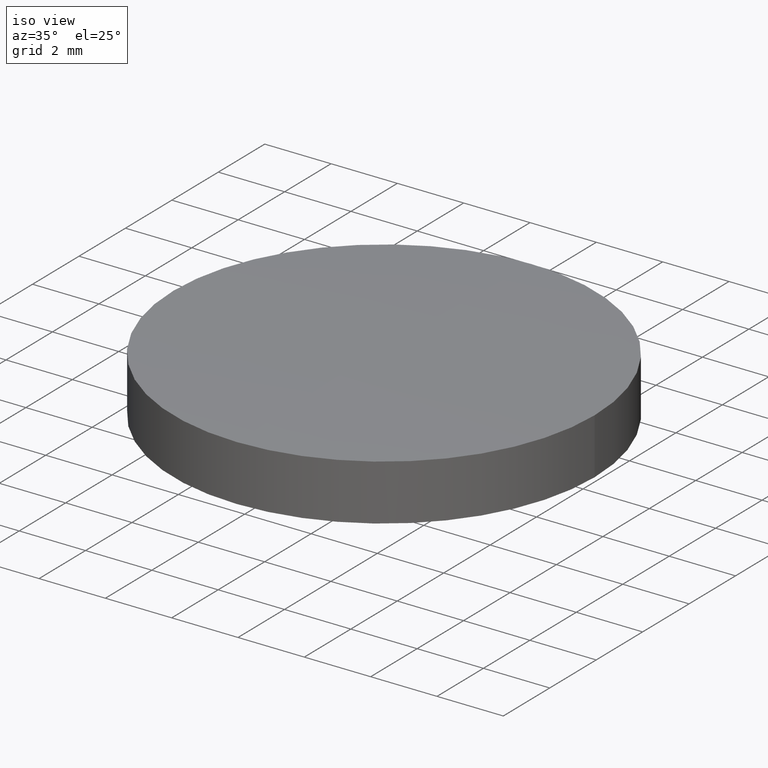
[diagram: clean part render]
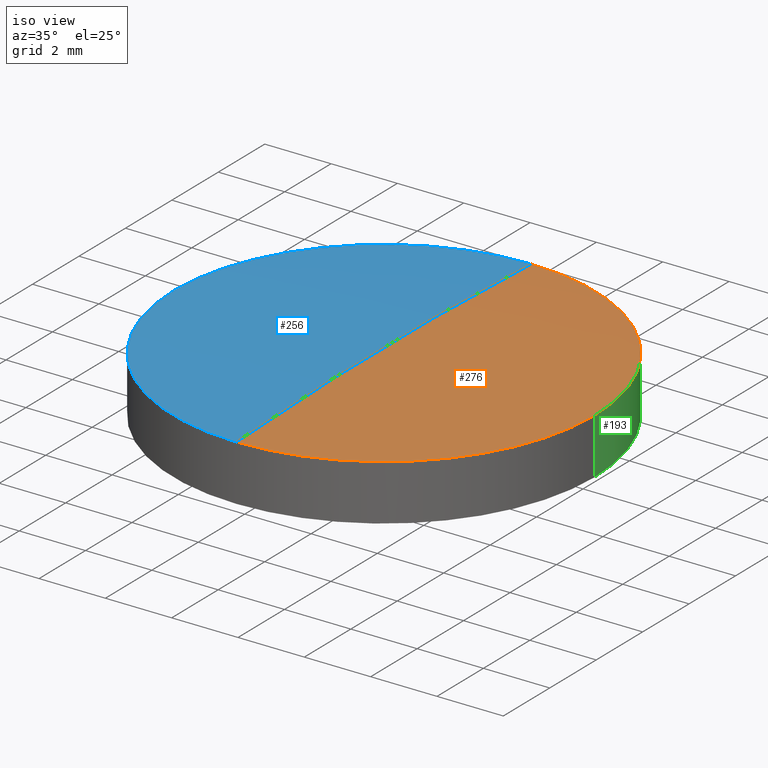
[diagram: same view with three faces highlighted in distinct colors, each labeled with its STEP entity id]
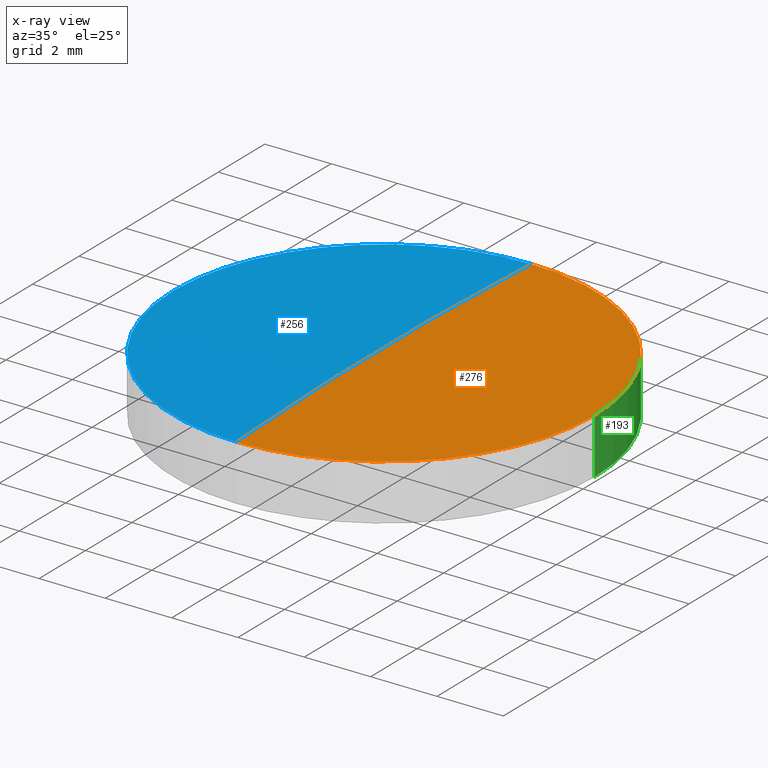
[diagram: x-ray of the same camera — body ghosted, the three highlighted faces saturated]
A machine part, iso view with three faces highlighted in distinct colors.
The next image is the same camera in x-ray (body ghosted, the three faces saturated) — at least one of them is partly hidden behind the body in this view.
Their STEP definitions:

[orange] entity #276 — the highlighted face is a freeform B-spline surface patch.
#2 = CARTESIAN_POINT ( 'NONE',  ( 4.261986648307224200, 2.143812045025328400, 2.000641063830584700 ) ) ;
#3 = CARTESIAN_POINT ( 'NONE',  ( 1.040834085586084300E-014, 2.143812045025328000, 2.053306066189127100 ) ) ;
#15 = DIRECTION ( 'NONE',  ( 1.000000000000000000, 0.0000000000000000000, 0.0000000000000000000 ) ) ;
#22 = CARTESIAN_POINT ( 'NONE',  ( 4.261986648307226000, -2.143812045025273800, 2.000641063830586500 ) ) ;
#24 = CARTESIAN_POINT ( 'NONE',  ( 1.387778780781445700E-014, -6.426137571816118700, 1.840213550652405800 ) ) ;
#27 = AXIS2_PLACEMENT_3D ( 'NONE', #83, #100, #116 ) ;
#32 = FACE_OUTER_BOUND ( 'NONE', #170, .T. ) ;
#44 = VERTEX_POINT ( 'NONE', #152 ) ;
#55 = AXIS2_PLACEMENT_3D ( 'NONE', #82, #286, #15 ) ;
#65 = EDGE_CURVE ( 'NONE', #226, #283, #188, .T. ) ;
#66 = ORIENTED_EDGE ( 'NONE', *, *, #110, .F. ) ;
#69 = CARTESIAN_POINT ( 'NONE',  ( 2.131318712605331000, -2.143812045025274200, 2.053306066189127600 ) ) ;
#82 = CARTESIAN_POINT ( 'NONE',  ( 2.498001805406600200E-016, 1.221245327087670000E-015, 1.843979728053910100 ) ) ;
#83 = CARTESIAN_POINT ( 'NONE',  ( 2.498001805406600200E-016, 1.221245327087670000E-015, 1.843979728053910100 ) ) ;
#85 = DIRECTION ( 'NONE',  ( 2.247376333165669900E-016, -1.000000000000000000, 2.146602909174702700E-016 ) ) ;
#87 = CARTESIAN_POINT ( 'NONE',  ( 2.127807646056734600, -6.426137571816117800, 1.840213550652405500 ) ) ;
#88 = ORIENTED_EDGE ( 'NONE', *, *, #65, .F. ) ;
#90 = CARTESIAN_POINT ( 'NONE',  ( 2.127807646056731000, 6.426137571816172000, 1.840213550652405500 ) ) ;
#100 = DIRECTION ( 'NONE',  ( -0.0000000000000000000, -0.0000000000000000000, -1.000000000000000000 ) ) ;
#104 = CARTESIAN_POINT ( 'NONE',  ( 1.214306433183765000E-014, -2.143812045025274700, 2.053306066189128900 ) ) ;
#105 = CARTESIAN_POINT ( 'NONE',  ( 6.390702650715312800, -2.143812045025273800, 1.895343220579511300 ) ) ;
#110 = EDGE_CURVE ( 'NONE', #44, #226, #160, .T. ) ;
#116 = DIRECTION ( 'NONE',  ( 1.000000000000000000, 0.0000000000000000000, 0.0000000000000000000 ) ) ;
#117 = ORIENTED_EDGE ( 'NONE', *, *, #172, .F. ) ;
#118 =( BOUNDED_SURFACE ( )  B_SPLINE_SURFACE ( 3, 3, ( 
 ( #244, #165, #87, #24 ),
 ( #105, #22, #69, #104 ),
 ( #275, #2, #246, #3 ),
 ( #220, #273, #90, #217 ) ),
 .UNSPECIFIED., .F., .F., .T. ) 
 B_SPLINE_SURFACE_WITH_KNOTS ( ( 4, 4 ),
 ( 4, 4 ),
 ( 0.0000000000000000000, 1.000000000000000000 ),
 ( 0.0000000000000000000, 1.000000000000000000 ),
 .UNSPECIFIED. ) 
 GEOMETRIC_REPRESENTATION_ITEM ( )  RATIONAL_B_SPLINE_SURFACE ( (
 ( 1.000000000000000000, 0.9997964399850740600, 0.9997964399850740600, 1.000000000000000000),
 ( 0.9991761461750572300, 0.9989727538638282200, 0.9989727538638282200, 0.9991761461750572300),
 ( 0.9991761461750572300, 0.9989727538638282200, 0.9989727538638282200, 0.9991761461750572300),
 ( 1.000000000000000000, 0.9997964399850740600, 0.9997964399850740600, 1.000000000000000000) ) ) 
 REPRESENTATION_ITEM ( '' )  SURFACE ( )  );
#143 = CARTESIAN_POINT ( 'NONE',  ( -1.703471866693090100E-014, -6.350000000000194200, 1.843979728053914100 ) ) ;
#152 = CARTESIAN_POINT ( 'NONE',  ( -1.988888661005140300E-014, 6.350000000000244800, 1.843979728053914100 ) ) ;
#160 = CIRCLE ( 'NONE', #27, 6.349999999999999600 ) ;
#165 = CARTESIAN_POINT ( 'NONE',  ( 4.254965587279170500, -6.426137571816117800, 1.787635306940972700 ) ) ;
#170 = EDGE_LOOP ( 'NONE', ( #117, #88, #66 ) ) ;
#172 = EDGE_CURVE ( 'NONE', #283, #44, #252, .T. ) ;
#188 = CIRCLE ( 'NONE', #55, 6.349999999999999600 ) ;
#207 = CARTESIAN_POINT ( 'NONE',  ( -1.421085471520200100E-014, 4.973799150320700000E-014, -127.3000000000000000 ) ) ;
#217 = CARTESIAN_POINT ( 'NONE',  ( 1.040834085586084300E-014, 6.426137571816171100, 1.840213550652405800 ) ) ;
#220 = CARTESIAN_POINT ( 'NONE',  ( 6.380174810760518500, 6.426137571816172800, 1.682510928002339800 ) ) ;
#226 = VERTEX_POINT ( 'NONE', #288 ) ;
#244 = CARTESIAN_POINT ( 'NONE',  ( 6.380174810760522100, -6.426137571816116900, 1.682510928002339800 ) ) ;
#246 = CARTESIAN_POINT ( 'NONE',  ( 2.131318712605328800, 2.143812045025328000, 2.053306066189126300 ) ) ;
#252 = CIRCLE ( 'NONE', #293, 129.3000000000000400 ) ;
#264 = DIRECTION ( 'NONE',  ( -1.000000000000000000, -2.247376333165669900E-016, -3.291634602124409800E-017 ) ) ;
#273 = CARTESIAN_POINT ( 'NONE',  ( 4.254965587279167000, 6.426137571816172000, 1.787635306940972700 ) ) ;
#275 = CARTESIAN_POINT ( 'NONE',  ( 6.390702650715311100, 2.143812045025329300, 1.895343220579510000 ) ) ;
#276 = ADVANCED_FACE ( 'NONE', ( #32 ), #118, .T. ) ;
#283 = VERTEX_POINT ( 'NONE', #143 ) ;
#286 = DIRECTION ( 'NONE',  ( -0.0000000000000000000, -0.0000000000000000000, -1.000000000000000000 ) ) ;
#288 = CARTESIAN_POINT ( 'NONE',  ( 6.349999999999999600, 1.221245327087670000E-015, 1.843979728053910100 ) ) ;
#293 = AXIS2_PLACEMENT_3D ( 'NONE', #207, #264, #85 ) ;

[blue] entity #256 — the highlighted face is a freeform B-spline surface patch.
#12 = VERTEX_POINT ( 'NONE', #257 ) ;
#17 = CARTESIAN_POINT ( 'NONE',  ( -6.380174810760537200, -6.426137571816120400, 1.682510928002335100 ) ) ;
#20 = CARTESIAN_POINT ( 'NONE',  ( -2.127807646056741200, -6.426137571816119600, 1.840213550652392000 ) ) ;
#34 = DIRECTION ( 'NONE',  ( -0.0000000000000000000, -0.0000000000000000000, -1.000000000000000000 ) ) ;
#37 = DIRECTION ( 'NONE',  ( 1.000000000000000000, 0.0000000000000000000, 0.0000000000000000000 ) ) ;
#38 =( BOUNDED_SURFACE ( )  B_SPLINE_SURFACE ( 3, 3, ( 
 ( #235, #20, #62, #17 ),
 ( #43, #63, #41, #42 ),
 ( #212, #89, #126, #249 ),
 ( #271, #103, #92, #142 ) ),
 .UNSPECIFIED., .F., .F., .F. ) 
 B_SPLINE_SURFACE_WITH_KNOTS ( ( 4, 4 ),
 ( 4, 4 ),
 ( 0.0000000000000000000, 1.000000000000000000 ),
 ( 0.0000000000000000000, 1.000000000000000000 ),
 .UNSPECIFIED. ) 
 GEOMETRIC_REPRESENTATION_ITEM ( )  RATIONAL_B_SPLINE_SURFACE ( (
 ( 1.000000000000000000, 0.9997964399850740600, 0.9997964399850740600, 1.000000000000000000),
 ( 0.9991761461750572300, 0.9989727538638282200, 0.9989727538638282200, 0.9991761461750572300),
 ( 0.9991761461750572300, 0.9989727538638282200, 0.9989727538638282200, 0.9991761461750572300),
 ( 1.000000000000000000, 0.9997964399850740600, 0.9997964399850740600, 1.000000000000000000) ) ) 
 REPRESENTATION_ITEM ( '' )  SURFACE ( )  );
#41 = CARTESIAN_POINT ( 'NONE',  ( -4.261986648307240200, -2.143812045025276000, 2.000641063830582000 ) ) ;
#42 = CARTESIAN_POINT ( 'NONE',  ( -6.390702650715330600, -2.143812045025276400, 1.895343220579506900 ) ) ;
#43 = CARTESIAN_POINT ( 'NONE',  ( -1.798689765139403600E-014, -2.143812045025275100, 2.053306066189115200 ) ) ;
#44 = VERTEX_POINT ( 'NONE', #152 ) ;
#59 = CARTESIAN_POINT ( 'NONE',  ( 2.498001805406600200E-016, 1.221245327087670000E-015, 1.843979728053910100 ) ) ;
#62 = CARTESIAN_POINT ( 'NONE',  ( -4.254965587279182100, -6.426137571816119600, 1.787635306940968100 ) ) ;
#63 = CARTESIAN_POINT ( 'NONE',  ( -2.131318712605341200, -2.143812045025275600, 2.053306066189114300 ) ) ;
#75 = AXIS2_PLACEMENT_3D ( 'NONE', #59, #80, #37 ) ;
#80 = DIRECTION ( 'NONE',  ( -0.0000000000000000000, -0.0000000000000000000, -1.000000000000000000 ) ) ;
#85 = DIRECTION ( 'NONE',  ( 2.247376333165669900E-016, -1.000000000000000000, 2.146602909174702700E-016 ) ) ;
#89 = CARTESIAN_POINT ( 'NONE',  ( -2.131318712605342100, 2.143812045025326600, 2.053306066189112500 ) ) ;
#92 = CARTESIAN_POINT ( 'NONE',  ( -4.254965587279184700, 6.426137571816170200, 1.787635306940968100 ) ) ;
#103 = CARTESIAN_POINT ( 'NONE',  ( -2.127807646056744300, 6.426137571816170200, 1.840213550652392000 ) ) ;
#112 = EDGE_CURVE ( 'NONE', #283, #12, #262, .T. ) ;
#123 = EDGE_LOOP ( 'NONE', ( #216, #239, #137 ) ) ;
#126 = CARTESIAN_POINT ( 'NONE',  ( -4.261986648307241100, 2.143812045025326200, 2.000641063830580300 ) ) ;
#129 = EDGE_CURVE ( 'NONE', #12, #44, #225, .T. ) ;
#133 = DIRECTION ( 'NONE',  ( 1.000000000000000000, 8.881784197001252300E-016, 0.0000000000000000000 ) ) ;
#137 = ORIENTED_EDGE ( 'NONE', *, *, #129, .F. ) ;
#138 = AXIS2_PLACEMENT_3D ( 'NONE', #261, #34, #133 ) ;
#142 = CARTESIAN_POINT ( 'NONE',  ( -6.380174810760539800, 6.426137571816169300, 1.682510928002335100 ) ) ;
#143 = CARTESIAN_POINT ( 'NONE',  ( -1.703471866693090100E-014, -6.350000000000194200, 1.843979728053914100 ) ) ;
#152 = CARTESIAN_POINT ( 'NONE',  ( -1.988888661005140300E-014, 6.350000000000244800, 1.843979728053914100 ) ) ;
#172 = EDGE_CURVE ( 'NONE', #283, #44, #252, .T. ) ;
#207 = CARTESIAN_POINT ( 'NONE',  ( -1.421085471520200100E-014, 4.973799150320700000E-014, -127.3000000000000000 ) ) ;
#212 = CARTESIAN_POINT ( 'NONE',  ( -1.895048814194310400E-014, 2.143812045025327500, 2.053306066189113400 ) ) ;
#216 = ORIENTED_EDGE ( 'NONE', *, *, #112, .F. ) ;
#225 = CIRCLE ( 'NONE', #75, 6.349999999999999600 ) ;
#235 = CARTESIAN_POINT ( 'NONE',  ( -1.701748372043599500E-014, -6.426137571816118700, 1.840213550652392000 ) ) ;
#239 = ORIENTED_EDGE ( 'NONE', *, *, #172, .T. ) ;
#249 = CARTESIAN_POINT ( 'NONE',  ( -6.390702650715331500, 2.143812045025326200, 1.895343220579505100 ) ) ;
#252 = CIRCLE ( 'NONE', #293, 129.3000000000000400 ) ;
#256 = ADVANCED_FACE ( 'NONE', ( #295 ), #38, .T. ) ;
#257 = CARTESIAN_POINT ( 'NONE',  ( -6.349999999999999600, 1.998896044546239400E-015, 1.843979728053910100 ) ) ;
#261 = CARTESIAN_POINT ( 'NONE',  ( 2.498001805406600200E-016, 1.221245327087670000E-015, 1.843979728053910100 ) ) ;
#262 = CIRCLE ( 'NONE', #138, 6.349999999999999600 ) ;
#264 = DIRECTION ( 'NONE',  ( -1.000000000000000000, -2.247376333165669900E-016, -3.291634602124409800E-017 ) ) ;
#271 = CARTESIAN_POINT ( 'NONE',  ( -1.990587361894925800E-014, 6.426137571816171100, 1.840213550652392000 ) ) ;
#283 = VERTEX_POINT ( 'NONE', #143 ) ;
#293 = AXIS2_PLACEMENT_3D ( 'NONE', #207, #264, #85 ) ;
#295 = FACE_OUTER_BOUND ( 'NONE', #123, .T. ) ;

[green] entity #193 — the highlighted cylindrical surface (partial cylindrical patch) has radius 6.35 mm, axis along (0, 0, 1).
#12 = VERTEX_POINT ( 'NONE', #257 ) ;
#25 = AXIS2_PLACEMENT_3D ( 'NONE', #120, #157, #183 ) ;
#27 = AXIS2_PLACEMENT_3D ( 'NONE', #83, #100, #116 ) ;
#37 = DIRECTION ( 'NONE',  ( 1.000000000000000000, 0.0000000000000000000, 0.0000000000000000000 ) ) ;
#44 = VERTEX_POINT ( 'NONE', #152 ) ;
#45 = CARTESIAN_POINT ( 'NONE',  ( 6.349999999999999600, 1.221245327087670000E-015, 0.1560202719460870000 ) ) ;
#52 = ORIENTED_EDGE ( 'NONE', *, *, #227, .T. ) ;
#54 = ORIENTED_EDGE ( 'NONE', *, *, #129, .T. ) ;
#59 = CARTESIAN_POINT ( 'NONE',  ( 2.498001805406600200E-016, 1.221245327087670000E-015, 1.843979728053910100 ) ) ;
#61 = DIRECTION ( 'NONE',  ( 0.0000000000000000000, 0.0000000000000000000, 1.000000000000000000 ) ) ;
#75 = AXIS2_PLACEMENT_3D ( 'NONE', #59, #80, #37 ) ;
#80 = DIRECTION ( 'NONE',  ( -0.0000000000000000000, -0.0000000000000000000, -1.000000000000000000 ) ) ;
#83 = CARTESIAN_POINT ( 'NONE',  ( 2.498001805406600200E-016, 1.221245327087670000E-015, 1.843979728053910100 ) ) ;
#99 = VERTEX_POINT ( 'NONE', #177 ) ;
#100 = DIRECTION ( 'NONE',  ( -0.0000000000000000000, -0.0000000000000000000, -1.000000000000000000 ) ) ;
#102 = CARTESIAN_POINT ( 'NONE',  ( 6.349999999999999600, 1.221245327087670000E-015, 0.1560202719460870000 ) ) ;
#110 = EDGE_CURVE ( 'NONE', #44, #226, #160, .T. ) ;
#116 = DIRECTION ( 'NONE',  ( 1.000000000000000000, 0.0000000000000000000, 0.0000000000000000000 ) ) ;
#120 = CARTESIAN_POINT ( 'NONE',  ( 2.498001805406600200E-016, 1.221245327087670000E-015, 0.1560202719460870000 ) ) ;
#122 = EDGE_CURVE ( 'NONE', #233, #99, #267, .T. ) ;
#124 = DIRECTION ( 'NONE',  ( 1.000000000000000000, 1.776356839400250500E-015, 0.0000000000000000000 ) ) ;
#129 = EDGE_CURVE ( 'NONE', #12, #44, #225, .T. ) ;
#149 = ORIENTED_EDGE ( 'NONE', *, *, #278, .F. ) ;
#152 = CARTESIAN_POINT ( 'NONE',  ( -1.988888661005140300E-014, 6.350000000000244800, 1.843979728053914100 ) ) ;
#154 = FACE_OUTER_BOUND ( 'NONE', #230, .T. ) ;
#156 = DIRECTION ( 'NONE',  ( 1.000000000000000000, -8.881784197001252300E-016, 0.0000000000000000000 ) ) ;
#157 = DIRECTION ( 'NONE',  ( 0.0000000000000000000, 0.0000000000000000000, 1.000000000000000000 ) ) ;
#158 = ORIENTED_EDGE ( 'NONE', *, *, #122, .F. ) ;
#160 = CIRCLE ( 'NONE', #27, 6.349999999999999600 ) ;
#163 = VECTOR ( 'NONE', #289, 1000.000000000000000 ) ;
#167 = ORIENTED_EDGE ( 'NONE', *, *, #251, .F. ) ;
#173 = LINE ( 'NONE', #102, #163 ) ;
#174 = DIRECTION ( 'NONE',  ( -0.0000000000000000000, -0.0000000000000000000, -1.000000000000000000 ) ) ;
#177 = CARTESIAN_POINT ( 'NONE',  ( 1.988888661005132700E-014, 6.349999999999970300, 0.1560202719460852300 ) ) ;
#179 = CARTESIAN_POINT ( 'NONE',  ( -6.349999999999999600, 1.998896044546239400E-015, 0.1560202719460870000 ) ) ;
#183 = DIRECTION ( 'NONE',  ( 1.000000000000000000, 0.0000000000000000000, 0.0000000000000000000 ) ) ;
#193 = ADVANCED_FACE ( 'NONE', ( #154 ), #209, .T. ) ;
#197 = VECTOR ( 'NONE', #61, 1000.000000000000000 ) ;
#200 = AXIS2_PLACEMENT_3D ( 'NONE', #272, #221, #124 ) ;
#209 = CYLINDRICAL_SURFACE ( 'NONE', #25, 6.349999999999999600 ) ;
#221 = DIRECTION ( 'NONE',  ( -0.0000000000000000000, -0.0000000000000000000, -1.000000000000000000 ) ) ;
#225 = CIRCLE ( 'NONE', #75, 6.349999999999999600 ) ;
#226 = VERTEX_POINT ( 'NONE', #288 ) ;
#227 = EDGE_CURVE ( 'NONE', #233, #12, #265, .T. ) ;
#230 = EDGE_LOOP ( 'NONE', ( #158, #52, #54, #270, #167, #149 ) ) ;
#232 = CARTESIAN_POINT ( 'NONE',  ( 2.498001805406600200E-016, 1.221245327087670000E-015, 0.1560202719460870000 ) ) ;
#233 = VERTEX_POINT ( 'NONE', #266 ) ;
#241 = AXIS2_PLACEMENT_3D ( 'NONE', #232, #174, #156 ) ;
#251 = EDGE_CURVE ( 'NONE', #280, #226, #173, .T. ) ;
#257 = CARTESIAN_POINT ( 'NONE',  ( -6.349999999999999600, 1.998896044546239400E-015, 1.843979728053910100 ) ) ;
#265 = LINE ( 'NONE', #179, #197 ) ;
#266 = CARTESIAN_POINT ( 'NONE',  ( -6.349999999999999600, 1.998896044546239400E-015, 0.1560202719460870000 ) ) ;
#267 = CIRCLE ( 'NONE', #241, 6.349999999999999600 ) ;
#270 = ORIENTED_EDGE ( 'NONE', *, *, #110, .T. ) ;
#272 = CARTESIAN_POINT ( 'NONE',  ( 2.498001805406600200E-016, 1.221245327087670000E-015, 0.1560202719460870000 ) ) ;
#278 = EDGE_CURVE ( 'NONE', #99, #280, #291, .T. ) ;
#280 = VERTEX_POINT ( 'NONE', #45 ) ;
#288 = CARTESIAN_POINT ( 'NONE',  ( 6.349999999999999600, 1.221245327087670000E-015, 1.843979728053910100 ) ) ;
#289 = DIRECTION ( 'NONE',  ( 0.0000000000000000000, 0.0000000000000000000, 1.000000000000000000 ) ) ;
#291 = CIRCLE ( 'NONE', #200, 6.349999999999999600 ) ;